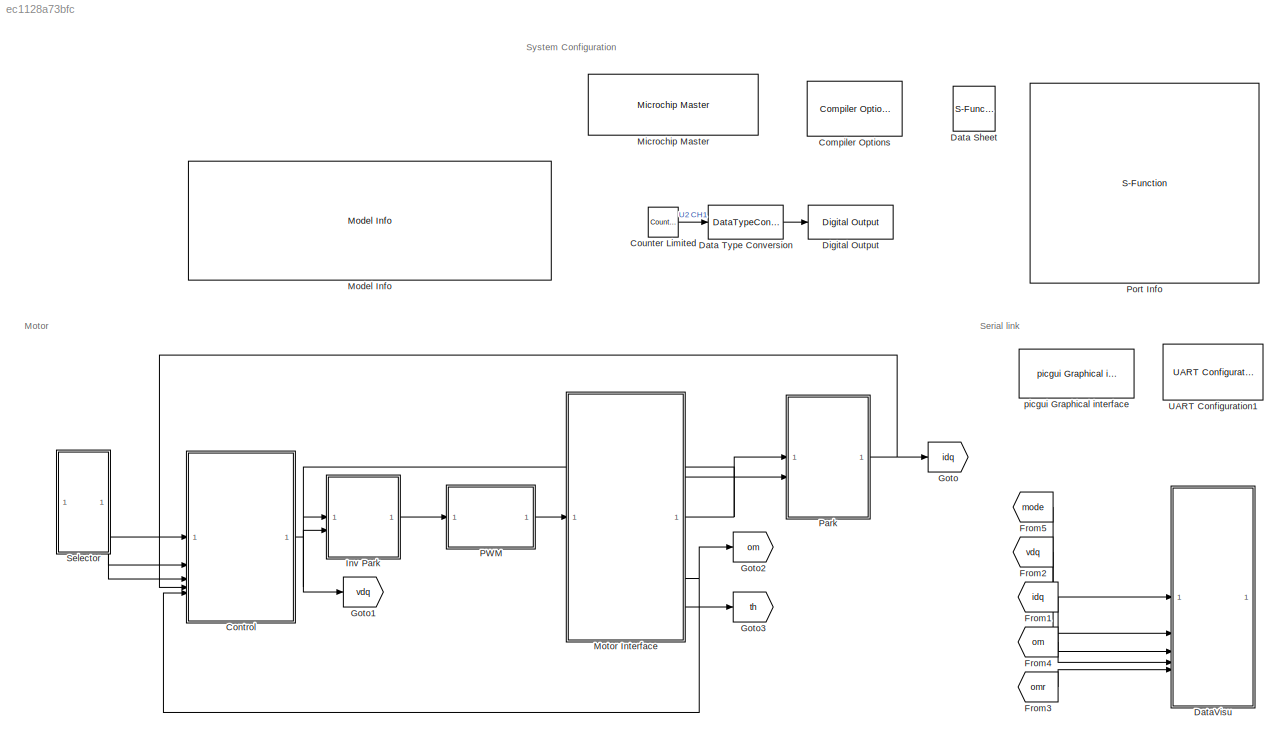
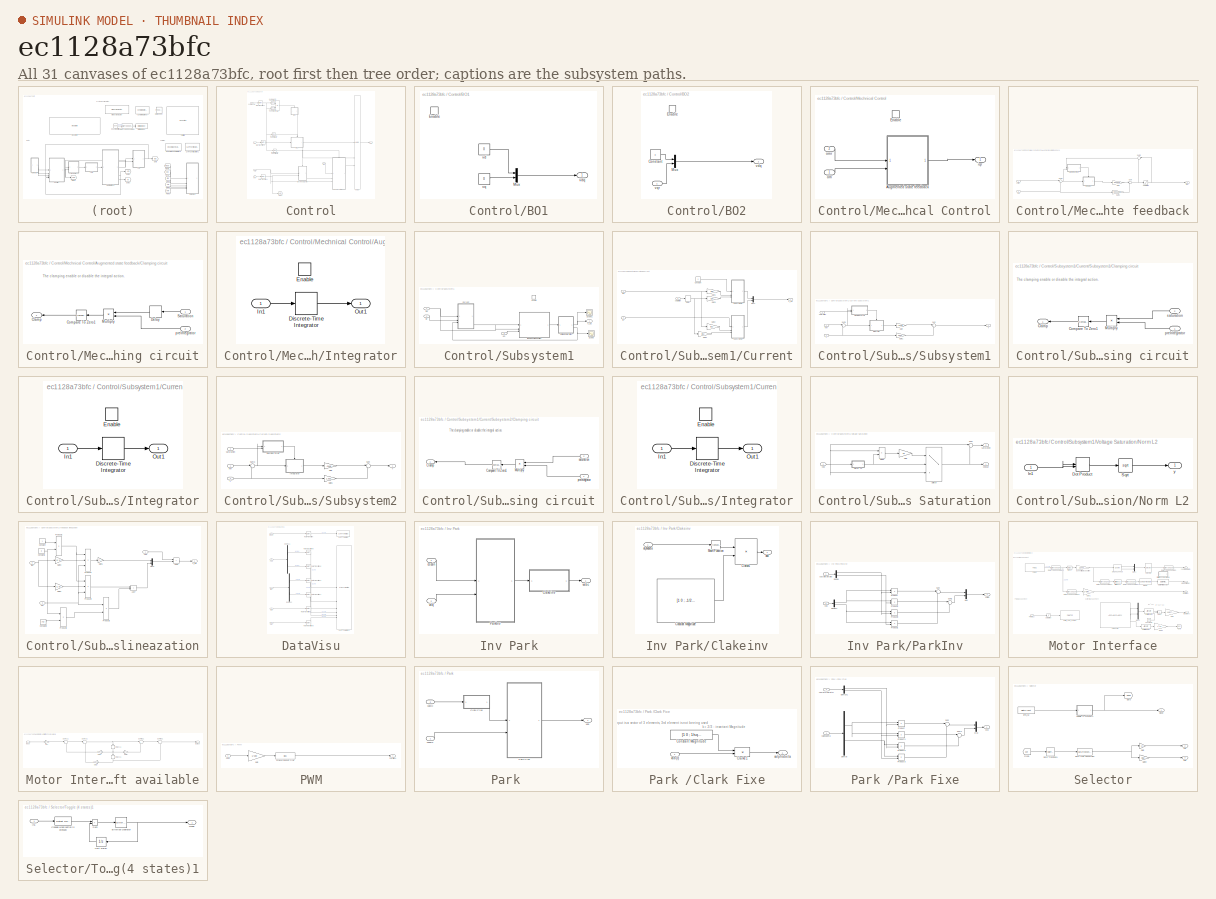
[diagram: thumbnail index - all 31 canvases of the model, root first then tree order]
MODEL slx_ec1128a73bfc
KIND model
CONFIG AbsTol = auto
CONFIG EnableMultiTasking = on
CONFIG FixedStep = 5e-5
CONFIG InitFcn = % DC Voltage\nVDC = 24;\n\n% Intersective PMW \nVmax = VDC/2;\nImax = 4;\n\nTs = 1e-4;\n\n\n% pole paires\np = 4;\n\n% QEI\nlines = 4*1000;\neleclines = lines/p;\ninveleclines = 1/eleclines\ngainQEIspeed = 2*pi/Ts/lines\n\n% Electrical parameters\nR=0.656; L=0.35e-3; Phif=0.0066;\n% Mechanical parameters\nF=1.e-05; J=1e-05; C0 = 0.01;%10;%1;\n\n\n\n\n\n\n\n
CONFIG MaxStep = auto
CONFIG MinStep = auto
CONFIG RelTol = 1e-3
CONFIG SampleTimeConstraint = Unconstrained
CONFIG SolverName = FixedStepDiscrete
CONFIG StartTime = 0.0
CONFIG StopTime = 10.0
BLOCK [Reference] Compiler Options  REF=MCHP_Blockset/System Configuration/Compiler Options
  Priority = 1
  SourceBlock = MCHP_Blockset/System Configuration/Compiler Options
  SourceProductName = MPLAB Device Blocks for Simulink
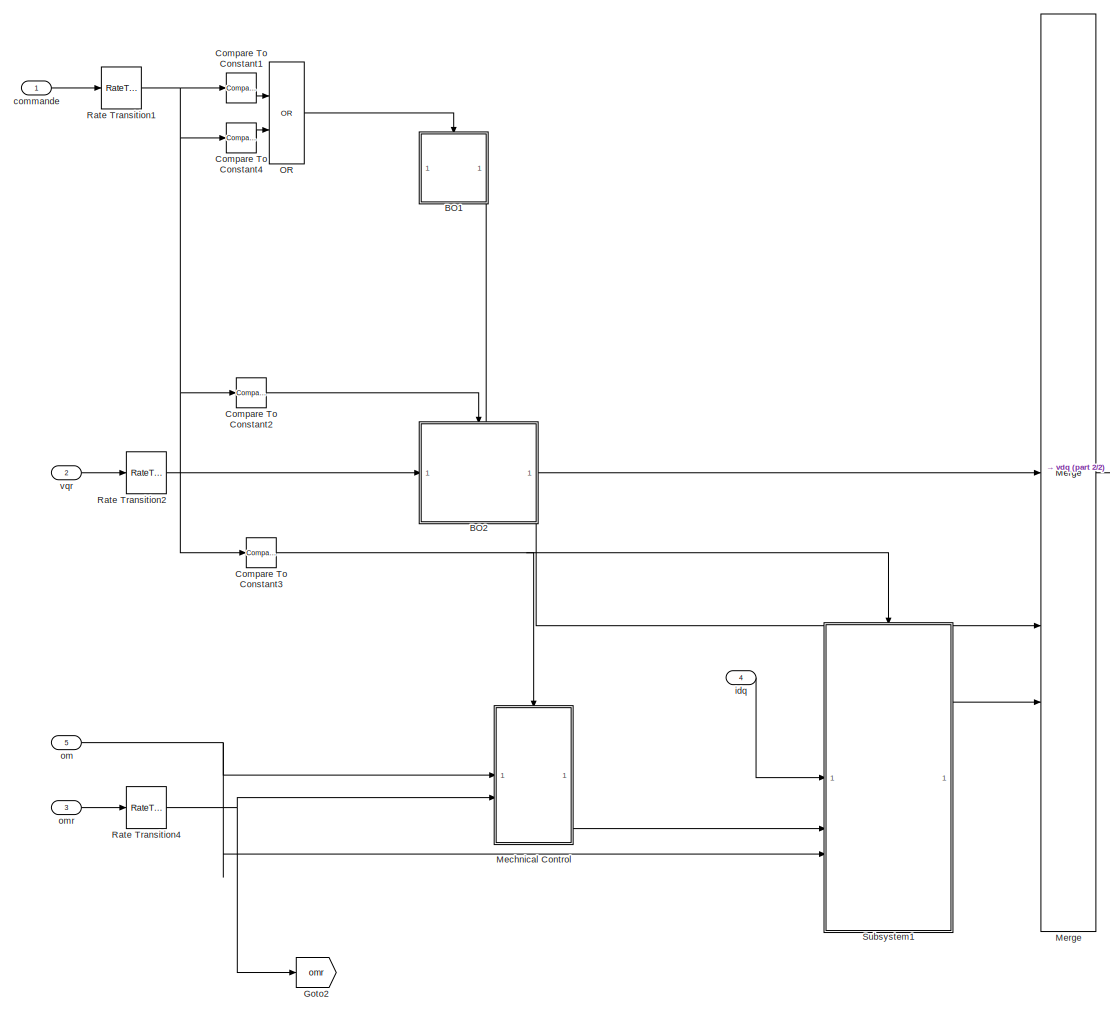
[diagram: Control - part 1/2, most of the canvas]
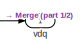
[diagram: Control - part 2/2, middle right region]
BLOCK [SubSystem] Control
BLOCK [SubSystem] Control/BO1
BLOCK [EnablePort] Control/BO1/Enable
BLOCK [Mux] Control/BO1/Mux
  DisplayOption = bar
  Inputs = 2
BLOCK [Constant] Control/BO1/vd
  OutDataTypeStr = single
  OutMax = [12]
  OutMin = [-12]
  Value = 0
BLOCK [Outport] Control/BO1/vdq
  VectorParamsAs1DForOutWhenUnconnected = off
BLOCK [Constant] Control/BO1/vq
  OutDataTypeStr = single
  OutMax = [12]
  OutMin = [-12]
  Value = 0
BLOCK [SubSystem] Control/BO2
BLOCK [Constant] Control/BO2/Constant
  OutDataTypeStr = single
  Value = 0
BLOCK [EnablePort] Control/BO2/Enable
BLOCK [Mux] Control/BO2/Mux
  DisplayOption = bar
  Inputs = 2
BLOCK [Outport] Control/BO2/vdq
  VectorParamsAs1DForOutWhenUnconnected = off
BLOCK [Inport] Control/BO2/vqr
BLOCK [Reference] Control/Compare To Constant1  REF=simulink/Logic and Bit
Operations/Compare
To Constant
  SourceBlock = simulink/Logic and Bit\nOperations/Compare\nTo Constant
  SourceType = Compare To Constant
BLOCK [Reference] Control/Compare To Constant2  REF=simulink/Logic and Bit
Operations/Compare
To Constant
  SourceBlock = simulink/Logic and Bit\nOperations/Compare\nTo Constant
  SourceType = Compare To Constant
BLOCK [Reference] Control/Compare To Constant3  REF=simulink/Logic and Bit
Operations/Compare
To Constant
  SourceBlock = simulink/Logic and Bit\nOperations/Compare\nTo Constant
  SourceType = Compare To Constant
BLOCK [Reference] Control/Compare To Constant4  REF=simulink/Logic and Bit
Operations/Compare
To Constant
  SourceBlock = simulink/Logic and Bit\nOperations/Compare\nTo Constant
  SourceType = Compare To Constant
BLOCK [Goto] Control/Goto2
  GotoTag = omr
  TagVisibility = global
BLOCK [SubSystem] Control/Mechnical Control
BLOCK [SubSystem] Control/Mechnical Control/Augmented state feedback
  NameLocation = top
BLOCK [SubSystem] Control/Mechnical Control/Augmented state feedback/Clamping circuit
BLOCK [Outport] Control/Mechnical Control/Augmented state feedback/Clamping circuit/Clamp
  DisableCoverage = on
  VectorParamsAs1DForOutWhenUnconnected = off
BLOCK [Reference] Control/Mechnical Control/Augmented state feedback/Clamping circuit/Compare To Zero1  REF=simulink/Logic and Bit
Operations/Compare
To Zero
  NameLocation = top
  SourceBlock = simulink/Logic and Bit\nOperations/Compare\nTo Zero
  SourceType = Compare To Zero
BLOCK [Delay] Control/Mechnical Control/Augmented state feedback/Clamping circuit/Delay
  DelayLength = 1
  InitialCondition = 0
  InputPortMap = u0
  NameLocation = top
BLOCK [Product] Control/Mechnical Control/Augmented state feedback/Clamping circuit/Multiply
  NameLocation = top
BLOCK [Inport] Control/Mechnical Control/Augmented state feedback/Clamping circuit/Saturation
  DisableCoverage = on
BLOCK [Inport] Control/Mechnical Control/Augmented state feedback/Clamping circuit/preIntegrator
  DisableCoverage = on
  Port = 2
  VarSizeSig = No
BLOCK [Gain] Control/Mechnical Control/Augmented state feedback/Gain
  Gain = -0.02525
BLOCK [Gain] Control/Mechnical Control/Augmented state feedback/Gain1
  Gain = 0.003283
BLOCK [SubSystem] Control/Mechnical Control/Augmented state feedback/Integrator
BLOCK [DiscreteIntegrator] Control/Mechnical Control/Augmented state feedback/Integrator/Discrete-Time Integrator
  ICPrevOutput = DiscIntNeverNeededParam
  ICPrevScaledInput = DiscIntNeverNeededParam
  InitialConditionSetting = Auto
  OutDataTypeStr = single
  SampleTime = 1e-4
  SaturateOnIntegerOverflow = on
BLOCK [EnablePort] Control/Mechnical Control/Augmented state feedback/Integrator/Enable
BLOCK [Inport] Control/Mechnical Control/Augmented state feedback/Integrator/In1
BLOCK [Outport] Control/Mechnical Control/Augmented state feedback/Integrator/Out1
  VectorParamsAs1DForOutWhenUnconnected = off
BLOCK [Saturate] Control/Mechnical Control/Augmented state feedback/Saturation
  LowerLimit = -4
  UpperLimit = 4
BLOCK [Sum] Control/Mechnical Control/Augmented state feedback/Sum
  Inputs = |--
  OutDataTypeStr = single
  SaturateOnIntegerOverflow = on
BLOCK [Sum] Control/Mechnical Control/Augmented state feedback/Sum1
  Inputs = |+-
BLOCK [Sum] Control/Mechnical Control/Augmented state feedback/Sum2
  AccumDataTypeStr = Inherit: Same as first input
  Inputs = |-+
  NameLocation = top
  OutDataTypeStr = Inherit: Same as accumulator
  SaturateOnIntegerOverflow = on
BLOCK [Outport] Control/Mechnical Control/Augmented state feedback/iqref
  VectorParamsAs1DForOutWhenUnconnected = off
BLOCK [Inport] Control/Mechnical Control/Augmented state feedback/om
  Port = 2
BLOCK [Inport] Control/Mechnical Control/Augmented state feedback/omref
BLOCK [EnablePort] Control/Mechnical Control/Enable
  StatesWhenEnabling = reset
BLOCK [Outport] Control/Mechnical Control/iqr
  VectorParamsAs1DForOutWhenUnconnected = off
BLOCK [Inport] Control/Mechnical Control/om
BLOCK [Inport] Control/Mechnical Control/omr
  Port = 2
BLOCK [Merge] Control/Merge
  Inputs = 3
BLOCK [Logic] Control/OR
  AllPortsSameDT = off
  IconShape = distinctive
  Operator = OR
  OutDataTypeStr = boolean
BLOCK [RateTransition] Control/Rate Transition1
BLOCK [RateTransition] Control/Rate Transition2
BLOCK [RateTransition] Control/Rate Transition4
BLOCK [SubSystem] Control/Subsystem1
BLOCK [SubSystem] Control/Subsystem1/Current
  NameLocation = top
BLOCK [Constant] Control/Subsystem1/Current/Constant
  Value = 0
BLOCK [Delay] Control/Subsystem1/Current/Delay
  DelayLength = 1
  InputPortMap = u0
BLOCK [Gain] Control/Subsystem1/Current/Gain1
  Gain = [1 0]
  Multiplication = Matrix(K*u)
  OutDataTypeStr = Inherit: Same as input
BLOCK [Gain] Control/Subsystem1/Current/Gain2
  Gain = [0 1]
  Multiplication = Matrix(K*u)
  OutDataTypeStr = Inherit: Same as input
BLOCK [Gain] Control/Subsystem1/Current/Gain3
  Gain = [1 0]
  Multiplication = Matrix(K*u)
  OutDataTypeStr = Inherit: Same as input
BLOCK [Gain] Control/Subsystem1/Current/Gain4
  Gain = [0 1]
  Multiplication = Matrix(K*u)
  OutDataTypeStr = Inherit: Same as input
BLOCK [Mux] Control/Subsystem1/Current/Mux1
  DisplayOption = bar
  Inputs = 2
BLOCK [SubSystem] Control/Subsystem1/Current/Subsystem1
BLOCK [SubSystem] Control/Subsystem1/Current/Subsystem1/Clamping circuit
BLOCK [Outport] Control/Subsystem1/Current/Subsystem1/Clamping circuit/Clamp
  DisableCoverage = on
  VectorParamsAs1DForOutWhenUnconnected = off
BLOCK [Reference] Control/Subsystem1/Current/Subsystem1/Clamping circuit/Compare To Zero1  REF=simulink/Logic and Bit
Operations/Compare
To Zero
  NameLocation = top
  SourceBlock = simulink/Logic and Bit\nOperations/Compare\nTo Zero
  SourceType = Compare To Zero
BLOCK [Product] Control/Subsystem1/Current/Subsystem1/Clamping circuit/Multiply
  NameLocation = top
BLOCK [Inport] Control/Subsystem1/Current/Subsystem1/Clamping circuit/preIntegrator
  DisableCoverage = on
  VarSizeSig = No
BLOCK [Inport] Control/Subsystem1/Current/Subsystem1/Clamping circuit/saturation
  DisableCoverage = on
  Port = 2
BLOCK [Gain] Control/Subsystem1/Current/Subsystem1/Gain
  Gain = -3418
BLOCK [Gain] Control/Subsystem1/Current/Subsystem1/Gain1
  Gain = 1.531
BLOCK [SubSystem] Control/Subsystem1/Current/Subsystem1/Integrator
BLOCK [DiscreteIntegrator] Control/Subsystem1/Current/Subsystem1/Integrator/Discrete-Time Integrator
  ICPrevOutput = DiscIntNeverNeededParam
  ICPrevScaledInput = DiscIntNeverNeededParam
  InitialConditionSetting = Auto
  OutDataTypeStr = single
  SampleTime = 1e-4
BLOCK [EnablePort] Control/Subsystem1/Current/Subsystem1/Integrator/Enable
BLOCK [Inport] Control/Subsystem1/Current/Subsystem1/Integrator/In1
BLOCK [Outport] Control/Subsystem1/Current/Subsystem1/Integrator/Out1
  VectorParamsAs1DForOutWhenUnconnected = off
BLOCK [Sum] Control/Subsystem1/Current/Subsystem1/Sum
  Inputs = |--
  OutDataTypeStr = single
  SaturateOnIntegerOverflow = on
BLOCK [Sum] Control/Subsystem1/Current/Subsystem1/Sum3
  Inputs = |+-
BLOCK [Inport] Control/Subsystem1/Current/Subsystem1/i
  Port = 2
BLOCK [Inport] Control/Subsystem1/Current/Subsystem1/iref
BLOCK [Inport] Control/Subsystem1/Current/Subsystem1/saturation
  Port = 3
BLOCK [Outport] Control/Subsystem1/Current/Subsystem1/v
  VectorParamsAs1DForOutWhenUnconnected = off
BLOCK [SubSystem] Control/Subsystem1/Current/Subsystem2
BLOCK [SubSystem] Control/Subsystem1/Current/Subsystem2/Clamping circuit
BLOCK [Outport] Control/Subsystem1/Current/Subsystem2/Clamping circuit/Clamp
  DisableCoverage = on
  VectorParamsAs1DForOutWhenUnconnected = off
BLOCK [Reference] Control/Subsystem1/Current/Subsystem2/Clamping circuit/Compare To Zero1  REF=simulink/Logic and Bit
Operations/Compare
To Zero
  NameLocation = top
  SourceBlock = simulink/Logic and Bit\nOperations/Compare\nTo Zero
  SourceType = Compare To Zero
BLOCK [Product] Control/Subsystem1/Current/Subsystem2/Clamping circuit/Multiply
  NameLocation = top
BLOCK [Inport] Control/Subsystem1/Current/Subsystem2/Clamping circuit/preIntegrator
  DisableCoverage = on
  VarSizeSig = No
BLOCK [Inport] Control/Subsystem1/Current/Subsystem2/Clamping circuit/saturation
  DisableCoverage = on
  Port = 2
BLOCK [Gain] Control/Subsystem1/Current/Subsystem2/Gain
  Gain = -3418
BLOCK [Gain] Control/Subsystem1/Current/Subsystem2/Gain1
  Gain = 1.531
BLOCK [SubSystem] Control/Subsystem1/Current/Subsystem2/Integrator
BLOCK [DiscreteIntegrator] Control/Subsystem1/Current/Subsystem2/Integrator/Discrete-Time Integrator
  ICPrevOutput = DiscIntNeverNeededParam
  ICPrevScaledInput = DiscIntNeverNeededParam
  InitialConditionSetting = Auto
  OutDataTypeStr = single
  SampleTime = 1e-4
BLOCK [EnablePort] Control/Subsystem1/Current/Subsystem2/Integrator/Enable
BLOCK [Inport] Control/Subsystem1/Current/Subsystem2/Integrator/In1
BLOCK [Outport] Control/Subsystem1/Current/Subsystem2/Integrator/Out1
  VectorParamsAs1DForOutWhenUnconnected = off
BLOCK [Sum] Control/Subsystem1/Current/Subsystem2/Sum
  Inputs = |--
  OutDataTypeStr = single
  SaturateOnIntegerOverflow = on
BLOCK [Sum] Control/Subsystem1/Current/Subsystem2/Sum3
  Inputs = |+-
BLOCK [Inport] Control/Subsystem1/Current/Subsystem2/i
  Port = 2
BLOCK [Inport] Control/Subsystem1/Current/Subsystem2/iref
BLOCK [Inport] Control/Subsystem1/Current/Subsystem2/saturation
  Port = 3
BLOCK [Outport] Control/Subsystem1/Current/Subsystem2/v
  VectorParamsAs1DForOutWhenUnconnected = off
BLOCK [Inport] Control/Subsystem1/Current/idq
BLOCK [Inport] Control/Subsystem1/Current/iqr
  Port = 2
BLOCK [Inport] Control/Subsystem1/Current/saturation
  Port = 3
BLOCK [Outport] Control/Subsystem1/Current/v_dq
  VectorParamsAs1DForOutWhenUnconnected = off
BLOCK [EnablePort] Control/Subsystem1/Enable
  StatesWhenEnabling = reset
BLOCK [Scope] Control/Subsystem1/Scope
  Floating = off
  NumInputPorts = 1
  ScopeSpecificationString = Simulink.scopes.TimeScopeBlockCfg('CurrentConfiguration', extmgr.ConfigurationSet(extmgr.Configuration('Core','General UI',true),extmgr.Configuration('Core','Source UI',true),extmgr.Configuration('Sources','WiredSimulink',true,'DataLoggingVariableName','ScopeData3'),extmgr.Configuration('Visuals','Time Domain',true,'SerializedDisplays',{struct('MinYLimReal','-0.02877','MaxYLimReal','0.25896','YLab...<+1435ch>
BLOCK [Scope] Control/Subsystem1/Scope1
  Floating = off
  NumInputPorts = 1
  ScopeSpecificationString = Simulink.scopes.TimeScopeBlockCfg('CurrentConfiguration', extmgr.ConfigurationSet(extmgr.Configuration('Core','General UI',true),extmgr.Configuration('Core','Source UI',true),extmgr.Configuration('Sources','WiredSimulink',true,'DataLoggingVariableName','ScopeData4'),extmgr.Configuration('Visuals','Time Domain',true,'SerializedDisplays',{struct('MinYLimReal','-1.09402','MaxYLimReal','6.46965','YLab...<+1461ch>
BLOCK [SubSystem] Control/Subsystem1/Voltage Saturation
BLOCK [Product] Control/Subsystem1/Voltage Saturation/Divide
  Inputs = */
BLOCK [Gain] Control/Subsystem1/Voltage Saturation/Gain
  Gain = 12
BLOCK [SubSystem] Control/Subsystem1/Voltage Saturation/Norm L2
BLOCK [DotProduct] Control/Subsystem1/Voltage Saturation/Norm L2/Dot Product
  OutDataTypeStr = Inherit: Inherit via internal rule
BLOCK [Inport] Control/Subsystem1/Voltage Saturation/Norm L2/In1
BLOCK [Sqrt] Control/Subsystem1/Voltage Saturation/Norm L2/Sqrt
BLOCK [Outport] Control/Subsystem1/Voltage Saturation/Norm L2/y
BLOCK [Sum] Control/Subsystem1/Voltage Saturation/Sum
  Inputs = |+-
BLOCK [Switch] Control/Subsystem1/Voltage Saturation/Switch
  Criteria = u2 > Threshold
  InputSameDT = off
  SaturateOnIntegerOverflow = off
  Threshold = 12
BLOCK [Outport] Control/Subsystem1/Voltage Saturation/saturation
  Port = 2
  VectorParamsAs1DForOutWhenUnconnected = off
BLOCK [Inport] Control/Subsystem1/Voltage Saturation/vdq
BLOCK [Outport] Control/Subsystem1/Voltage Saturation/vdqsat
  VectorParamsAs1DForOutWhenUnconnected = off
BLOCK [SubSystem] Control/Subsystem1/feedback lineazation
  NameLocation = top
BLOCK [Sum] Control/Subsystem1/feedback lineazation/Add6
  IconShape = rectangular
BLOCK [Sum] Control/Subsystem1/feedback lineazation/Add7
  IconShape = rectangular
BLOCK [Constant] Control/Subsystem1/feedback lineazation/Constant
  OutDataTypeStr = single
  Value = L
BLOCK [Constant] Control/Subsystem1/feedback lineazation/Constant1
  OutDataTypeStr = single
  Value = p
BLOCK [Constant] Control/Subsystem1/feedback lineazation/Constant2
  OutDataTypeStr = single
  Value = Phif
BLOCK [Gain] Control/Subsystem1/feedback lineazation/Gain1
  Gain = -1
BLOCK [Gain] Control/Subsystem1/feedback lineazation/Gain2
  Gain = [1 0]
  Multiplication = Matrix(K*u)
BLOCK [Gain] Control/Subsystem1/feedback lineazation/Gain3
  Gain = [0 1]
  Multiplication = Matrix(K*u)
BLOCK [Mux] Control/Subsystem1/feedback lineazation/Mux2
  DisplayOption = bar
  Inputs = 2
BLOCK [Product] Control/Subsystem1/feedback lineazation/Product2
BLOCK [Product] Control/Subsystem1/feedback lineazation/Product3
BLOCK [Product] Control/Subsystem1/feedback lineazation/Product7
  Inputs = 3
BLOCK [Product] Control/Subsystem1/feedback lineazation/Product8
BLOCK [Product] Control/Subsystem1/feedback lineazation/Product9
  Inputs = 3
BLOCK [Inport] Control/Subsystem1/feedback lineazation/idq
  NameLocation = top
  Port = 2
BLOCK [Inport] Control/Subsystem1/feedback lineazation/om
  Port = 3
BLOCK [Inport] Control/Subsystem1/feedback lineazation/udq
BLOCK [Outport] Control/Subsystem1/feedback lineazation/v_dq
  VectorParamsAs1DForOutWhenUnconnected = off
BLOCK [Inport] Control/Subsystem1/idq
BLOCK [Inport] Control/Subsystem1/iqr
  Port = 2
BLOCK [Inport] Control/Subsystem1/om
  Port = 3
BLOCK [Outport] Control/Subsystem1/v_dq
BLOCK [Inport] Control/commande
BLOCK [Inport] Control/idq
  Port = 4
BLOCK [Inport] Control/om
  Port = 5
BLOCK [Inport] Control/omr
  Port = 3
BLOCK [Outport] Control/vdq
  VectorParamsAs1DForOutWhenUnconnected = off
BLOCK [Inport] Control/vqr
  Port = 2
BLOCK [Reference] Counter Limited  REF=simulink/Sources/Counter
Limited
  SourceBlock = simulink/Sources/Counter\nLimited
  SourceType = Counter Limited
BLOCK [S-Function] Data Sheet
  AttributesFormatString = %<cpy_MCHP_Id>
  CopyFcn = MCHP_Doc_Callback(gcb,'COPY');
  EnableBusSupport = off
  FunctionName = MCHP_EmptySFunction
  OpenFcn = MCHP_Doc_Callback(gcb,'OPEN');
  SFcnIsStateOwnerBlock = off
  SFunctionDeploymentMode = off
BLOCK [DataTypeConversion] Data Type Conversion
  OutDataTypeStr = boolean
  RndMeth = Floor
  SaturateOnIntegerOverflow = off
BLOCK [SubSystem] DataVisu
BLOCK [Demux] DataVisu/Demux1
  Outputs = 2
BLOCK [Demux] DataVisu/Demux2
  Outputs = 2
BLOCK [RateTransition] DataVisu/Rate Transition
BLOCK [RateTransition] DataVisu/Rate Transition1
BLOCK [RateTransition] DataVisu/Rate Transition4
BLOCK [RateTransition] DataVisu/Rate Transition5
BLOCK [RateTransition] DataVisu/Rate Transition6
BLOCK [RateTransition] DataVisu/Rate Transition7
BLOCK [RateTransition] DataVisu/Rate Transition8
BLOCK [Reference] DataVisu/UART Tx-Matlab  REF=MCHP_Blockset/BUS UART/UART Tx-Matlab
  SourceBlock = MCHP_Blockset/BUS UART/UART Tx-Matlab
  SourceProductName = MPLAB Device Blocks for Simulink
  SourceType = Higl Level UART protocol
BLOCK [Reference] DataVisu/UART Tx-Matlab1  REF=MCHP_Blockset/BUS UART/UART Tx-Matlab
  SourceBlock = MCHP_Blockset/BUS UART/UART Tx-Matlab
  SourceProductName = MPLAB Device Blocks for Simulink
  SourceType = Higl Level UART protocol
BLOCK [Inport] DataVisu/idq
  Port = 3
BLOCK [Inport] DataVisu/mode
BLOCK [Inport] DataVisu/om
  Port = 4
BLOCK [Inport] DataVisu/omr
  Port = 5
BLOCK [Inport] DataVisu/vdq
  Port = 2
BLOCK [Reference] Digital Output  REF=MCHP_Blockset/Digital IO/Digital Output
  SourceBlock = MCHP_Blockset/Digital IO/Digital Output
  SourceProductName = MPLAB Device Blocks for Simulink
BLOCK [From] From1
  GotoTag = idq
BLOCK [From] From2
  GotoTag = vdq
BLOCK [From] From3
  GotoTag = omr
  TagVisibility = global
BLOCK [From] From4
  GotoTag = om
BLOCK [From] From5
  GotoTag = mode
  TagVisibility = global
BLOCK [Goto] Goto
  GotoTag = idq
BLOCK [Goto] Goto1
  GotoTag = vdq
BLOCK [Goto] Goto2
  GotoTag = om
BLOCK [Goto] Goto3
  GotoTag = th
BLOCK [SubSystem] Inv Park
BLOCK [SubSystem] Inv Park/Clakeinv
BLOCK [Product] Inv Park/Clakeinv/Clarke1
  Multiplication = Matrix(*)
  OutDataTypeStr = Inherit: Same as first input
  RndMeth = Simplest
BLOCK [Constant] Inv Park/Clakeinv/Constant Magnitude
  OutDataTypeStr = Inherit: Inherit via back propagation
  SampleTime = -1
  Value = [1 0 ; -1/2 sqrt(3)/2 ;-1/2 -sqrt(3)/2]'
BLOCK [Math] Inv Park/Clakeinv/Math Function
  Operator = transpose
  SignedPower = on
BLOCK [Outport] Inv Park/Clakeinv/abc
  VectorParamsAs1DForOutWhenUnconnected = off
BLOCK [Inport] Inv Park/Clakeinv/alphabeta
BLOCK [SubSystem] Inv Park/ParkInv
BLOCK [Demux] Inv Park/ParkInv/Demux
  Outputs = 2
BLOCK [Demux] Inv Park/ParkInv/Demux1
  Outputs = 2
BLOCK [Mux] Inv Park/ParkInv/Mux
  DisplayOption = bar
  Inputs = 2
BLOCK [Product] Inv Park/ParkInv/Product
BLOCK [Product] Inv Park/ParkInv/Product1
BLOCK [Product] Inv Park/ParkInv/Product2
BLOCK [Product] Inv Park/ParkInv/Product3
BLOCK [Sum] Inv Park/ParkInv/Sum
  Inputs = |+-
BLOCK [Sum] Inv Park/ParkInv/Sum1
  Inputs = |++
BLOCK [Inport] Inv Park/ParkInv/cos(pth)sin(pth)
BLOCK [Outport] Inv Park/ParkInv/valbe
  VectorParamsAs1DForOutWhenUnconnected = off
BLOCK [Inport] Inv Park/ParkInv/vdq
  Port = 2
BLOCK [Inport] Inv Park/cossin
BLOCK [Outport] Inv Park/vabc
  VectorParamsAs1DForOutWhenUnconnected = off
BLOCK [Inport] Inv Park/vdq
  Port = 2
  PortDimensions = 2
BLOCK [Reference] Microchip Master  REF=MCHP_Blockset/System Configuration/Microchip Master
  Priority = 1
  SourceBlock = MCHP_Blockset/System Configuration/Microchip Master
  SourceProductName = MPLAB Device Blocks for Simulink
BLOCK [Reference] Model Info  REF=simulink/Model-Wide
Utilities/Model Info
  SourceBlock = simulink/Model-Wide\nUtilities/Model Info
  SourceType = CMBlock
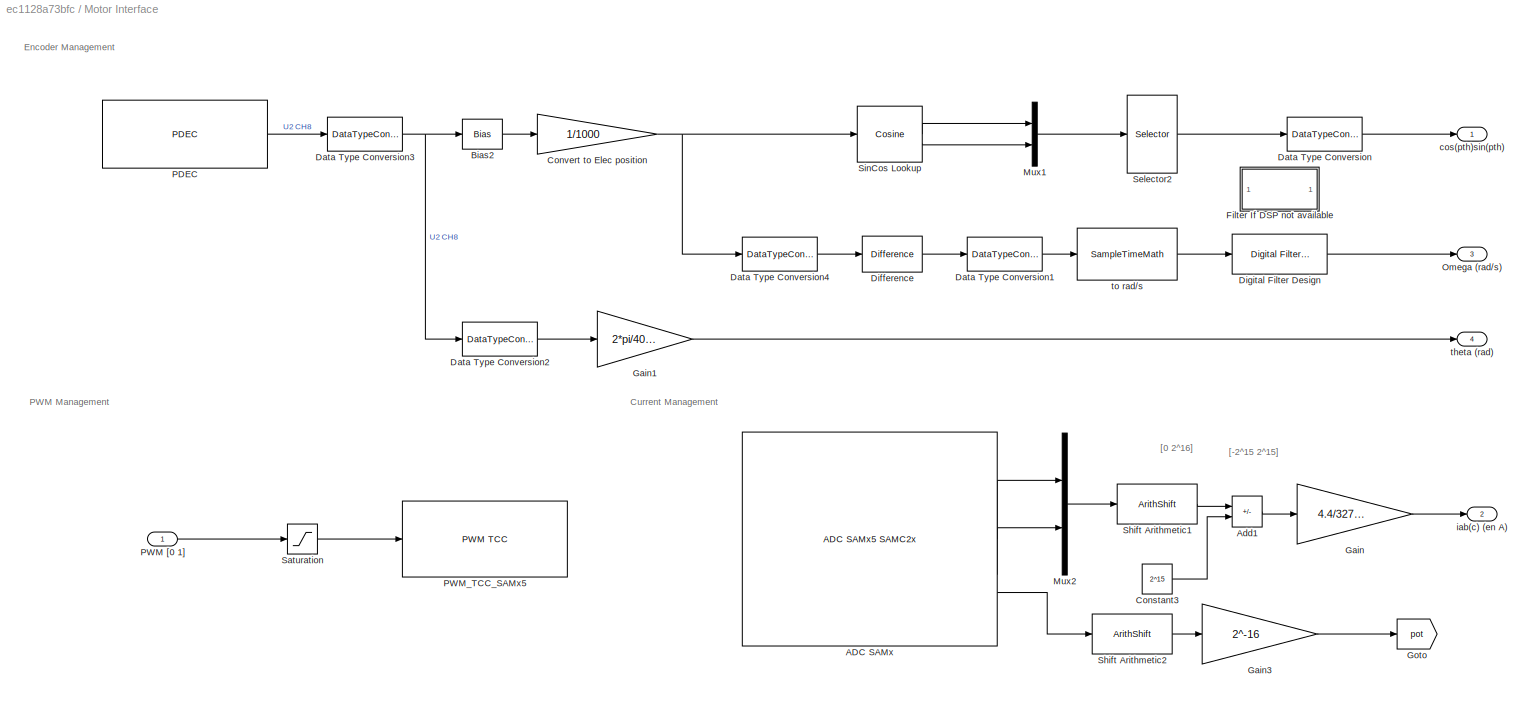
BLOCK [SubSystem] Motor Interface
BLOCK [Reference] Motor Interface/ADC SAMx  REF=MCHP_Blockset/Analog IO/ADC SAMx5 SAMC2x
  SourceBlock = MCHP_Blockset/Analog IO/ADC SAMx5 SAMC2x
  SourceProductName = MPLAB Device Blocks for Simulink
  SourceType = ADC for SAMD5/E5 & SAMC2x
  UserDataPersistent = on
BLOCK [Sum] Motor Interface/Add1
  IconShape = rectangular
  Inputs = +-
  OutDataTypeStr = single
BLOCK [Bias] Motor Interface/Bias2
  Bias = 170
  SaturateOnIntegerOverflow = off
BLOCK [Constant] Motor Interface/Constant3
  OutDataTypeStr = fixdt(0,16,0)
  Value = 2^15
BLOCK [Gain] Motor Interface/Convert to Elec position
  Gain = 1/1000
  OutDataTypeStr = fixdt(0,16,16)
BLOCK [DataTypeConversion] Motor Interface/Data Type Conversion
  OutDataTypeStr = single
  RndMeth = Floor
  SaturateOnIntegerOverflow = off
BLOCK [DataTypeConversion] Motor Interface/Data Type Conversion1
  OutDataTypeStr = single
  RndMeth = Floor
  SaturateOnIntegerOverflow = off
BLOCK [DataTypeConversion] Motor Interface/Data Type Conversion2
  OutDataTypeStr = single
  RndMeth = Floor
  SaturateOnIntegerOverflow = off
BLOCK [DataTypeConversion] Motor Interface/Data Type Conversion3
  ConvertRealWorld = Stored Integer (SI)
  OutDataTypeStr = int16
  RndMeth = Floor
  SaturateOnIntegerOverflow = off
BLOCK [DataTypeConversion] Motor Interface/Data Type Conversion4
  ConvertRealWorld = Stored Integer (SI)
  OutDataTypeStr = fixdt(1,16,16)
  RndMeth = Floor
  SaturateOnIntegerOverflow = off
BLOCK [Reference] Motor Interface/Difference  REF=simulink/Discrete/Difference
  SourceBlock = simulink/Discrete/Difference
  SourceType = Difference
BLOCK [Reference] Motor Interface/Digital Filter Design  REF=dspfdesign/Digital
Filter Design
  SourceBlock = dspfdesign/Digital\nFilter Design
  SourceType = Digital Filter Design
  UserDataPersistent = on
BLOCK [SubSystem] Motor Interface/Filter If DSP not available
  Commented = on
  ErrorFcn = dspFilterRealizedInBasicElemsAlgLoopErrFcnCallback
  Tag = FilterWizardSubSystem
  UserDataPersistent = on
BLOCK [Delay] Motor Interface/Filter If DSP not available/Delay11
  DelayLength = 1
  InitialCondition = 0
  InputPortMap = u0
  NameLocation = right
BLOCK [Delay] Motor Interface/Filter If DSP not available/Delay21
  DelayLength = 1
  InitialCondition = 0
  InputPortMap = u0
  NameLocation = right
BLOCK [Inport] Motor Interface/Filter If DSP not available/Input
BLOCK [Outport] Motor Interface/Filter If DSP not available/Output
BLOCK [Sum] Motor Interface/Filter If DSP not available/SumA21
  Inputs = |+-
  OutDataTypeStr = Inherit: Same as first input
  RndMeth = Nearest
  SaturateOnIntegerOverflow = on
BLOCK [Sum] Motor Interface/Filter If DSP not available/SumA31
  Inputs = |+-
  OutDataTypeStr = Inherit: Same as first input
  RndMeth = Nearest
  SaturateOnIntegerOverflow = on
BLOCK [Sum] Motor Interface/Filter If DSP not available/SumB21
  Inputs = |++
  OutDataTypeStr = Inherit: Same as first input
  RndMeth = Nearest
  SaturateOnIntegerOverflow = on
BLOCK [Sum] Motor Interface/Filter If DSP not available/SumB31
  Inputs = |++
  OutDataTypeStr = Inherit: Same as first input
  RndMeth = Nearest
  SaturateOnIntegerOverflow = on
BLOCK [Gain] Motor Interface/Filter If DSP not available/a(2)(1)
  Gain = -1.14298050253990113
  OutDataTypeStr = Inherit: Same as input
  ParamDataTypeStr = double
  RndMeth = Nearest
  SaturateOnIntegerOverflow = on
BLOCK [Gain] Motor Interface/Filter If DSP not available/a(3)(1)
  Gain = 0.412801598096188771
  OutDataTypeStr = Inherit: Same as input
  ParamDataTypeStr = double
  RndMeth = Nearest
  SaturateOnIntegerOverflow = on
BLOCK [Gain] Motor Interface/Filter If DSP not available/b(2)(1)
  Gain = 2
  OutDataTypeStr = Inherit: Same as input
  ParamDataTypeStr = double
  RndMeth = Nearest
  SaturateOnIntegerOverflow = on
BLOCK [Gain] Motor Interface/Filter If DSP not available/s(1)
  Gain = 0.0674552738890718956
  OutDataTypeStr = Inherit: Same as input
  ParamDataTypeStr = double
  RndMeth = Nearest
  SaturateOnIntegerOverflow = on
BLOCK [Gain] Motor Interface/Gain
  Gain = 4.4/32768
BLOCK [Gain] Motor Interface/Gain1
  Gain = 2*pi/4000
BLOCK [Gain] Motor Interface/Gain3
  Gain = 2^-16
  OutDataTypeStr = single
BLOCK [Goto] Motor Interface/Goto
  GotoTag = pot
  TagVisibility = global
BLOCK [Mux] Motor Interface/Mux1
  DisplayOption = bar
  Inputs = 2
BLOCK [Mux] Motor Interface/Mux2
  DisplayOption = bar
  Inputs = 2
BLOCK [Outport] Motor Interface/Omega (rad//s)
  Port = 3
  PortDimensions = 1
  VectorParamsAs1DForOutWhenUnconnected = off
BLOCK [Reference] Motor Interface/PDEC  REF=MCHP_Blockset/QEI/PDEC
  SourceBlock = MCHP_Blockset/QEI/PDEC
  SourceProductName = MPLAB Device Blocks for Simulink
  SourceType = PDEC
  UserDataPersistent = on
BLOCK [Inport] Motor Interface/PWM [0 1]
BLOCK [Reference] Motor Interface/PWM_TCC_SAMx5  REF=MCHP_Blockset/PWM IO/PWM TCC
  SourceBlock = MCHP_Blockset/PWM IO/PWM TCC
  SourceProductName = MPLAB Device Blocks for Simulink
  SourceType = PWM - TCC
  UserDataPersistent = on
BLOCK [Saturate] Motor Interface/Saturation
  LinearizeAsGain = off
  LowerLimit = 0.02
  OutDataTypeStr = double
  UpperLimit = 0.98
BLOCK [Selector] Motor Interface/Selector2
  IndexOptions = Index vector (dialog)
  Indices = [2 1]
  InputPortWidth = 2
  OutputSizes = 1
BLOCK [ArithShift] Motor Interface/Shift Arithmetic1
  BitShiftDirection = Left
  BitShiftNumber = 4
  InputPortMap = u0
BLOCK [ArithShift] Motor Interface/Shift Arithmetic2
  BitShiftDirection = Left
  BitShiftNumber = 4
  InputPortMap = u0
BLOCK [Reference] Motor Interface/SinCos Lookup  REF=simulink/Lookup
Tables/Cosine
  SourceBlock = simulink/Lookup\nTables/Cosine
  SourceType = Sine and Cosine
BLOCK [Outport] Motor Interface/cos(pth)sin(pth)
  VectorParamsAs1DForOutWhenUnconnected = off
BLOCK [Outport] Motor Interface/iab(c) (en A)
  Port = 2
  VectorParamsAs1DForOutWhenUnconnected = off
BLOCK [Outport] Motor Interface/theta (rad)
  Port = 4
  VectorParamsAs1DForOutWhenUnconnected = off
BLOCK [SampleTimeMath] Motor Interface/to rad//s
  TsampMathOp = /
  weightValue = (4)/(2*pi)
BLOCK [SubSystem] PWM
BLOCK [Bias] PWM/50% average duty-cycle
  Bias = 0.5
  SaturateOnIntegerOverflow = off
BLOCK [Gain] PWM/Gain
  Gain = 1/VDC
  OutDataTypeStr = single
BLOCK [Outport] PWM/PWM [0 1]
  VectorParamsAs1DForOutWhenUnconnected = off
BLOCK [Inport] PWM/vabc
BLOCK [SubSystem] Park 
BLOCK [SubSystem] Park /Clark Fixe
BLOCK [Product] Park /Clark Fixe/Clarke1
  Multiplication = Matrix(*)
  OutDataTypeStr = single
  RndMeth = Convergent
  SaturateOnIntegerOverflow = on
BLOCK [Constant] Park /Clark Fixe/Constant Magnitude
  OutDataTypeStr = single
  Value = [1 0 ; 1/sqrt(3) 2/sqrt(3) ];
BLOCK [Inport] Park /Clark Fixe/xab(c)
BLOCK [Outport] Park /Clark Fixe/xalphabeta
  VectorParamsAs1DForOutWhenUnconnected = off
BLOCK [SubSystem] Park /Park Fixe
BLOCK [Demux] Park /Park Fixe/Demux
  Outputs = 2
BLOCK [Demux] Park /Park Fixe/Demux1
  Outputs = 2
BLOCK [Mux] Park /Park Fixe/Mux
  DisplayOption = bar
  Inputs = 2
BLOCK [Product] Park /Park Fixe/Product
BLOCK [Product] Park /Park Fixe/Product1
BLOCK [Product] Park /Park Fixe/Product2
BLOCK [Product] Park /Park Fixe/Product3
BLOCK [Sum] Park /Park Fixe/Sum
  Inputs = |++
  SaturateOnIntegerOverflow = on
BLOCK [Sum] Park /Park Fixe/Sum1
  Inputs = |-+
  SaturateOnIntegerOverflow = on
BLOCK [Inport] Park /Park Fixe/cos(pth)sin(pth)
  Port = 2
BLOCK [Inport] Park /Park Fixe/xalphabeta
BLOCK [Outport] Park /Park Fixe/xdq
  VectorParamsAs1DForOutWhenUnconnected = off
BLOCK [Inport] Park /cossin
BLOCK [Inport] Park /xab(c)
  Port = 2
BLOCK [Outport] Park /xdq
  VectorParamsAs1DForOutWhenUnconnected = off
BLOCK [S-Function] Port Info
  CopyFcn = MCHP_PortInfo_Callback(gcb,'COPY');
  EnableBusSupport = off
  FunctionName = MCHP_EmptySFunction
  OpenFcn = MCHP_PortInfo_Callback(gcb,'OPEN');
  SFcnIsStateOwnerBlock = off
  SFunctionDeploymentMode = off
BLOCK [SubSystem] Selector
BLOCK [Reference] Selector/BTN_S2  REF=MCHP_Blockset/Digital IO/Digital Input
  SourceBlock = MCHP_Blockset/Digital IO/Digital Input
  SourceProductName = MPLAB Device Blocks for Simulink
  SourceType = Input driver for Digital Input Pins
BLOCK [DataTypeConversion] Selector/Data Type Conversion
  OutDataTypeStr = single
  RndMeth = Floor
  SaturateOnIntegerOverflow = off
BLOCK [From] Selector/From1
  GotoTag = pot
  TagVisibility = global
BLOCK [Gain] Selector/Gain
  Gain = 12
BLOCK [Gain] Selector/Gain2
  Gain = 350
BLOCK [Goto] Selector/Goto
  GotoTag = mode
  TagVisibility = global
BLOCK [Outport] Selector/Mode
  VectorParamsAs1DForOutWhenUnconnected = off
BLOCK [RateTransition] Selector/Rate Transition1
  OutPortSampleTime = 0.1
BLOCK [SubSystem] Selector/Toggle (4 states)1
BLOCK [Reference] Selector/Toggle (4 states)1/Bitwise Operator  REF=simulink/Logic and Bit
Operations/Bitwise
Operator
  SourceBlock = simulink/Logic and Bit\nOperations/Bitwise\nOperator
  SourceType = Bitwise Operator
BLOCK [Reference] Selector/Toggle (4 states)1/Change when button is pressed  REF=simulink/Logic and Bit
Operations/Detect
Decrease
  SourceBlock = simulink/Logic and Bit\nOperations/Detect\nDecrease
  SourceType = Detect Decrease
BLOCK [Inport] Selector/Toggle (4 states)1/In1
BLOCK [Outport] Selector/Toggle (4 states)1/Mode
  VectorParamsAs1DForOutWhenUnconnected = off
BLOCK [Sum] Selector/Toggle (4 states)1/Sum
  AccumDataTypeStr = uint16
  IconShape = rectangular
  OutDataTypeStr = uint16
BLOCK [UnitDelay] Selector/Toggle (4 states)1/Unit Delay
  HasFrameUpgradeWarning = on
  NameLocation = top
  SampleTime = -1
BLOCK [Outport] Selector/omr
  Port = 3
  VectorParamsAs1DForOutWhenUnconnected = off
BLOCK [Outport] Selector/vqr
  Port = 2
  VectorParamsAs1DForOutWhenUnconnected = off
BLOCK [Reference] UART Configuration1  REF=MCHP_Blockset/BUS UART/UART Configuration
  SourceBlock = MCHP_Blockset/BUS UART/UART Configuration
  SourceProductName = MPLAB Device Blocks for Simulink
  SourceType = Configuration for UART peripheral
BLOCK [Reference] picgui Graphical interface  REF=MCHP_Blockset/BUS UART/picgui
Graphical interface
  SourceBlock = MCHP_Blockset/BUS UART/picgui\nGraphical interface
  SourceProductName = MPLAB Device Blocks for Simulink
ANNOTATION (root): Motor
ANNOTATION (root): Serial link
ANNOTATION (root): System Configuration
ANNOTATION Control/Mechnical Control/Augmented state feedback/Clamping circuit: The clamping enable or disable the integral action.
ANNOTATION Control/Subsystem1/Current/Subsystem1/Clamping circuit: The clamping enable or disable the integral action.
ANNOTATION Control/Subsystem1/Current/Subsystem2/Clamping circuit: The clamping enable or disable the integral action.
ANNOTATION Motor Interface: Current Management
ANNOTATION Motor Interface: Encoder Management
ANNOTATION Motor Interface: PWM Management
ANNOTATION Motor Interface: [-2^15 2^15]
ANNOTATION Motor Interface: [0 2^16]
ANNOTATION Park /Clark Fixe: Input is a vector of 3 elements, 3rd element is not beeing used
ANNOTATION Park /Clark Fixe: k = 2/3 : invariant Magnitude
LINE Control/BO1/Mux:1 -> Control/BO1/vdq:1
LINE Control/BO1/vd:1 -> Control/BO1/Mux:1
LINE Control/BO1/vq:1 -> Control/BO1/Mux:2
LINE Control/BO1:1 -> Control/Merge:1
LINE Control/BO2/Constant:1 -> Control/BO2/Mux:1
LINE Control/BO2/Mux:1 -> Control/BO2/vdq:1
LINE Control/BO2/vqr:1 -> Control/BO2/Mux:2
LINE Control/BO2:1 -> Control/Merge:2
LINE Control/Compare To Constant1:1 -> Control/OR:1
LINE Control/Compare To Constant2:1 -> Control/BO2:enable
NET Control/Compare To Constant3:1 -> Control/Mechnical Control:enable, Control/Subsystem1:enable
LINE Control/Compare To Constant4:1 -> Control/OR:2
LINE Control/Mechnical Control/Augmented state feedback/Clamping circuit/Compare To Zero1:1 -> Control/Mechnical Control/Augmented state feedback/Clamping circuit/Clamp:1
LINE Control/Mechnical Control/Augmented state feedback/Clamping circuit/Delay:1 -> Control/Mechnical Control/Augmented state feedback/Clamping circuit/Multiply:1
LINE Control/Mechnical Control/Augmented state feedback/Clamping circuit/Multiply:1 -> Control/Mechnical Control/Augmented state feedback/Clamping circuit/Compare To Zero1:1
LINE Control/Mechnical Control/Augmented state feedback/Clamping circuit/Saturation:1 -> Control/Mechnical Control/Augmented state feedback/Clamping circuit/Delay:1
LINE Control/Mechnical Control/Augmented state feedback/Clamping circuit/preIntegrator:1 -> Control/Mechnical Control/Augmented state feedback/Clamping circuit/Multiply:2
LINE Control/Mechnical Control/Augmented state feedback/Clamping circuit:1 -> Control/Mechnical Control/Augmented state feedback/Integrator:enable
LINE Control/Mechnical Control/Augmented state feedback/Gain1:1 -> Control/Mechnical Control/Augmented state feedback/Sum:2
LINE Control/Mechnical Control/Augmented state feedback/Gain:1 -> Control/Mechnical Control/Augmented state feedback/Sum:1
LINE Control/Mechnical Control/Augmented state feedback/Integrator/Discrete-Time Integrator:1 -> Control/Mechnical Control/Augmented state feedback/Integrator/Out1:1
LINE Control/Mechnical Control/Augmented state feedback/Integrator/In1:1 -> Control/Mechnical Control/Augmented state feedback/Integrator/Discrete-Time Integrator:1
LINE Control/Mechnical Control/Augmented state feedback/Integrator:1 -> Control/Mechnical Control/Augmented state feedback/Gain:1
NET Control/Mechnical Control/Augmented state feedback/Saturation:1 -> Control/Mechnical Control/Augmented state feedback/Sum2:1, Control/Mechnical Control/Augmented state feedback/iqref:1
NET Control/Mechnical Control/Augmented state feedback/Sum1:1 -> Control/Mechnical Control/Augmented state feedback/Clamping circuit:2, Control/Mechnical Control/Augmented state feedback/Integrator:1
LINE Control/Mechnical Control/Augmented state feedback/Sum2:1 -> Control/Mechnical Control/Augmented state feedback/Clamping circuit:1
NET Control/Mechnical Control/Augmented state feedback/Sum:1 -> Control/Mechnical Control/Augmented state feedback/Saturation:1, Control/Mechnical Control/Augmented state feedback/Sum2:2
NET Control/Mechnical Control/Augmented state feedback/om:1 -> Control/Mechnical Control/Augmented state feedback/Gain1:1, Control/Mechnical Control/Augmented state feedback/Sum1:2
LINE Control/Mechnical Control/Augmented state feedback/omref:1 -> Control/Mechnical Control/Augmented state feedback/Sum1:1
LINE Control/Mechnical Control/Augmented state feedback:1 -> Control/Mechnical Control/iqr:1
LINE Control/Mechnical Control/om:1 -> Control/Mechnical Control/Augmented state feedback:2
LINE Control/Mechnical Control/omr:1 -> Control/Mechnical Control/Augmented state feedback:1
LINE Control/Mechnical Control:1 -> Control/Subsystem1:2
LINE Control/Merge:1 -> Control/vdq:1
LINE Control/OR:1 -> Control/BO1:enable
NET Control/Rate Transition1:1 -> Control/Compare To Constant1:1, Control/Compare To Constant2:1, Control/Compare To Constant3:1, Control/Compare To Constant4:1
LINE Control/Rate Transition2:1 -> Control/BO2:1
NET Control/Rate Transition4:1 -> Control/Goto2:1, Control/Mechnical Control:2
LINE Control/Subsystem1/Current/Constant:1 -> Control/Subsystem1/Current/Subsystem1:1
NET Control/Subsystem1/Current/Delay:1 -> Control/Subsystem1/Current/Gain3:1, Control/Subsystem1/Current/Gain4:1
LINE Control/Subsystem1/Current/Gain1:1 -> Control/Subsystem1/Current/Subsystem1:2
LINE Control/Subsystem1/Current/Gain2:1 -> Control/Subsystem1/Current/Subsystem2:2
LINE Control/Subsystem1/Current/Gain3:1 -> Control/Subsystem1/Current/Subsystem1:3
LINE Control/Subsystem1/Current/Gain4:1 -> Control/Subsystem1/Current/Subsystem2:3
LINE Control/Subsystem1/Current/Mux1:1 -> Control/Subsystem1/Current/v_dq:1
LINE Control/Subsystem1/Current/Subsystem1/Clamping circuit/Compare To Zero1:1 -> Control/Subsystem1/Current/Subsystem1/Clamping circuit/Clamp:1
LINE Control/Subsystem1/Current/Subsystem1/Clamping circuit/Multiply:1 -> Control/Subsystem1/Current/Subsystem1/Clamping circuit/Compare To Zero1:1
LINE Control/Subsystem1/Current/Subsystem1/Clamping circuit/preIntegrator:1 -> Control/Subsystem1/Current/Subsystem1/Clamping circuit/Multiply:2
LINE Control/Subsystem1/Current/Subsystem1/Clamping circuit/saturation:1 -> Control/Subsystem1/Current/Subsystem1/Clamping circuit/Multiply:1
LINE Control/Subsystem1/Current/Subsystem1/Clamping circuit:1 -> Control/Subsystem1/Current/Subsystem1/Integrator:enable
LINE Control/Subsystem1/Current/Subsystem1/Gain1:1 -> Control/Subsystem1/Current/Subsystem1/Sum:2
LINE Control/Subsystem1/Current/Subsystem1/Gain:1 -> Control/Subsystem1/Current/Subsystem1/Sum:1
LINE Control/Subsystem1/Current/Subsystem1/Integrator/Discrete-Time Integrator:1 -> Control/Subsystem1/Current/Subsystem1/Integrator/Out1:1
LINE Control/Subsystem1/Current/Subsystem1/Integrator/In1:1 -> Control/Subsystem1/Current/Subsystem1/Integrator/Discrete-Time Integrator:1
LINE Control/Subsystem1/Current/Subsystem1/Integrator:1 -> Control/Subsystem1/Current/Subsystem1/Gain:1
NET Control/Subsystem1/Current/Subsystem1/Sum3:1 -> Control/Subsystem1/Current/Subsystem1/Clamping circuit:1, Control/Subsystem1/Current/Subsystem1/Integrator:1
LINE Control/Subsystem1/Current/Subsystem1/Sum:1 -> Control/Subsystem1/Current/Subsystem1/v:1
NET Control/Subsystem1/Current/Subsystem1/i:1 -> Control/Subsystem1/Current/Subsystem1/Gain1:1, Control/Subsystem1/Current/Subsystem1/Sum3:2
LINE Control/Subsystem1/Current/Subsystem1/iref:1 -> Control/Subsystem1/Current/Subsystem1/Sum3:1
LINE Control/Subsystem1/Current/Subsystem1/saturation:1 -> Control/Subsystem1/Current/Subsystem1/Clamping circuit:2
LINE Control/Subsystem1/Current/Subsystem1:1 -> Control/Subsystem1/Current/Mux1:1
LINE Control/Subsystem1/Current/Subsystem2/Clamping circuit/Compare To Zero1:1 -> Control/Subsystem1/Current/Subsystem2/Clamping circuit/Clamp:1
LINE Control/Subsystem1/Current/Subsystem2/Clamping circuit/Multiply:1 -> Control/Subsystem1/Current/Subsystem2/Clamping circuit/Compare To Zero1:1
LINE Control/Subsystem1/Current/Subsystem2/Clamping circuit/preIntegrator:1 -> Control/Subsystem1/Current/Subsystem2/Clamping circuit/Multiply:2
LINE Control/Subsystem1/Current/Subsystem2/Clamping circuit/saturation:1 -> Control/Subsystem1/Current/Subsystem2/Clamping circuit/Multiply:1
LINE Control/Subsystem1/Current/Subsystem2/Clamping circuit:1 -> Control/Subsystem1/Current/Subsystem2/Integrator:enable
LINE Control/Subsystem1/Current/Subsystem2/Gain1:1 -> Control/Subsystem1/Current/Subsystem2/Sum:2
LINE Control/Subsystem1/Current/Subsystem2/Gain:1 -> Control/Subsystem1/Current/Subsystem2/Sum:1
LINE Control/Subsystem1/Current/Subsystem2/Integrator/Discrete-Time Integrator:1 -> Control/Subsystem1/Current/Subsystem2/Integrator/Out1:1
LINE Control/Subsystem1/Current/Subsystem2/Integrator/In1:1 -> Control/Subsystem1/Current/Subsystem2/Integrator/Discrete-Time Integrator:1
LINE Control/Subsystem1/Current/Subsystem2/Integrator:1 -> Control/Subsystem1/Current/Subsystem2/Gain:1
NET Control/Subsystem1/Current/Subsystem2/Sum3:1 -> Control/Subsystem1/Current/Subsystem2/Clamping circuit:1, Control/Subsystem1/Current/Subsystem2/Integrator:1
LINE Control/Subsystem1/Current/Subsystem2/Sum:1 -> Control/Subsystem1/Current/Subsystem2/v:1
NET Control/Subsystem1/Current/Subsystem2/i:1 -> Control/Subsystem1/Current/Subsystem2/Gain1:1, Control/Subsystem1/Current/Subsystem2/Sum3:2
LINE Control/Subsystem1/Current/Subsystem2/iref:1 -> Control/Subsystem1/Current/Subsystem2/Sum3:1
LINE Control/Subsystem1/Current/Subsystem2/saturation:1 -> Control/Subsystem1/Current/Subsystem2/Clamping circuit:2
LINE Control/Subsystem1/Current/Subsystem2:1 -> Control/Subsystem1/Current/Mux1:2
NET Control/Subsystem1/Current/idq:1 -> Control/Subsystem1/Current/Gain1:1, Control/Subsystem1/Current/Gain2:1
LINE Control/Subsystem1/Current/iqr:1 -> Control/Subsystem1/Current/Subsystem2:1
LINE Control/Subsystem1/Current/saturation:1 -> Control/Subsystem1/Current/Delay:1
LINE Control/Subsystem1/Current:1 -> Control/Subsystem1/feedback lineazation:1
LINE Control/Subsystem1/Voltage Saturation/Divide:1 -> Control/Subsystem1/Voltage Saturation/Gain:1
LINE Control/Subsystem1/Voltage Saturation/Gain:1 -> Control/Subsystem1/Voltage Saturation/Switch:1
LINE Control/Subsystem1/Voltage Saturation/Norm L2/Dot Product:1 -> Control/Subsystem1/Voltage Saturation/Norm L2/Sqrt:1
NET Control/Subsystem1/Voltage Saturation/Norm L2/In1:1 -> Control/Subsystem1/Voltage Saturation/Norm L2/Dot Product:1, Control/Subsystem1/Voltage Saturation/Norm L2/Dot Product:2
LINE Control/Subsystem1/Voltage Saturation/Norm L2/Sqrt:1 -> Control/Subsystem1/Voltage Saturation/Norm L2/y:1
NET Control/Subsystem1/Voltage Saturation/Norm L2:1 -> Control/Subsystem1/Voltage Saturation/Divide:2, Control/Subsystem1/Voltage Saturation/Switch:2
LINE Control/Subsystem1/Voltage Saturation/Sum:1 -> Control/Subsystem1/Voltage Saturation/saturation:1
NET Control/Subsystem1/Voltage Saturation/Switch:1 -> Control/Subsystem1/Voltage Saturation/Sum:2, Control/Subsystem1/Voltage Saturation/vdqsat:1
NET Control/Subsystem1/Voltage Saturation/vdq:1 -> Control/Subsystem1/Voltage Saturation/Divide:1, Control/Subsystem1/Voltage Saturation/Norm L2:1, Control/Subsystem1/Voltage Saturation/Sum:1, Control/Subsystem1/Voltage Saturation/Switch:3
NET Control/Subsystem1/Voltage Saturation:1 -> Control/Subsystem1/Scope1:1, Control/Subsystem1/v_dq:1
NET Control/Subsystem1/Voltage Saturation:2 -> Control/Subsystem1/Current:3, Control/Subsystem1/Scope:1
LINE Control/Subsystem1/feedback lineazation/Add6:1 -> Control/Subsystem1/feedback lineazation/v_dq:1
LINE Control/Subsystem1/feedback lineazation/Add7:1 -> Control/Subsystem1/feedback lineazation/Mux2:2
NET Control/Subsystem1/feedback lineazation/Constant1:1 -> Control/Subsystem1/feedback lineazation/Product2:2, Control/Subsystem1/feedback lineazation/Product8:1
LINE Control/Subsystem1/feedback lineazation/Constant2:1 -> Control/Subsystem1/feedback lineazation/Product8:2
LINE Control/Subsystem1/feedback lineazation/Constant:1 -> Control/Subsystem1/feedback lineazation/Product2:1
LINE Control/Subsystem1/feedback lineazation/Gain1:1 -> Control/Subsystem1/feedback lineazation/Mux2:1
LINE Control/Subsystem1/feedback lineazation/Gain2:1 -> Control/Subsystem1/feedback lineazation/Product9:2
LINE Control/Subsystem1/feedback lineazation/Gain3:1 -> Control/Subsystem1/feedback lineazation/Product7:2
LINE Control/Subsystem1/feedback lineazation/Mux2:1 -> Control/Subsystem1/feedback lineazation/Add6:2
NET Control/Subsystem1/feedback lineazation/Product2:1 -> Control/Subsystem1/feedback lineazation/Product7:1, Control/Subsystem1/feedback lineazation/Product9:1
LINE Control/Subsystem1/feedback lineazation/Product3:1 -> Control/Subsystem1/feedback lineazation/Add7:2
LINE Control/Subsystem1/feedback lineazation/Product7:1 -> Control/Subsystem1/feedback lineazation/Gain1:1
LINE Control/Subsystem1/feedback lineazation/Product8:1 -> Control/Subsystem1/feedback lineazation/Product3:2
LINE Control/Subsystem1/feedback lineazation/Product9:1 -> Control/Subsystem1/feedback lineazation/Add7:1
NET Control/Subsystem1/feedback lineazation/idq:1 -> Control/Subsystem1/feedback lineazation/Gain2:1, Control/Subsystem1/feedback lineazation/Gain3:1
NET Control/Subsystem1/feedback lineazation/om:1 -> Control/Subsystem1/feedback lineazation/Product3:1, Control/Subsystem1/feedback lineazation/Product7:3, Control/Subsystem1/feedback lineazation/Product9:3
LINE Control/Subsystem1/feedback lineazation/udq:1 -> Control/Subsystem1/feedback lineazation/Add6:1
LINE Control/Subsystem1/feedback lineazation:1 -> Control/Subsystem1/Voltage Saturation:1
NET Control/Subsystem1/idq:1 -> Control/Subsystem1/Current:1, Control/Subsystem1/feedback lineazation:2
LINE Control/Subsystem1/iqr:1 -> Control/Subsystem1/Current:2
LINE Control/Subsystem1/om:1 -> Control/Subsystem1/feedback lineazation:3
LINE Control/Subsystem1:1 -> Control/Merge:3
LINE Control/commande:1 -> Control/Rate Transition1:1
LINE Control/idq:1 -> Control/Subsystem1:1
NET Control/om:1 -> Control/Mechnical Control:1, Control/Subsystem1:3
LINE Control/omr:1 -> Control/Rate Transition4:1
LINE Control/vqr:1 -> Control/Rate Transition2:1
NET Control:1 -> Goto1:1, Inv Park:2
LINE Counter Limited:1 -> Data Type Conversion:1
LINE Data Type Conversion:1 -> Digital Output:1
LINE DataVisu/Demux1:1 -> DataVisu/Rate Transition5:1
LINE DataVisu/Demux1:2 -> DataVisu/Rate Transition6:1
LINE DataVisu/Demux2:1 -> DataVisu/Rate Transition4:1
LINE DataVisu/Demux2:2 -> DataVisu/Rate Transition7:1
LINE DataVisu/Rate Transition1:1 -> DataVisu/UART Tx-Matlab1:5
LINE DataVisu/Rate Transition4:1 -> DataVisu/UART Tx-Matlab1:3
LINE DataVisu/Rate Transition5:1 -> DataVisu/UART Tx-Matlab1:1
LINE DataVisu/Rate Transition6:1 -> DataVisu/UART Tx-Matlab1:2
LINE DataVisu/Rate Transition7:1 -> DataVisu/UART Tx-Matlab1:4
LINE DataVisu/Rate Transition8:1 -> DataVisu/UART Tx-Matlab1:6
LINE DataVisu/Rate Transition:1 -> DataVisu/UART Tx-Matlab:1
LINE DataVisu/idq:1 -> DataVisu/Demux2:1
LINE DataVisu/mode:1 -> DataVisu/Rate Transition:1
LINE DataVisu/om:1 -> DataVisu/Rate Transition1:1
LINE DataVisu/omr:1 -> DataVisu/Rate Transition8:1
LINE DataVisu/vdq:1 -> DataVisu/Demux1:1
LINE From1:1 -> DataVisu:3
LINE From2:1 -> DataVisu:2
LINE From3:1 -> DataVisu:5
LINE From4:1 -> DataVisu:4
LINE From5:1 -> DataVisu:1
LINE Inv Park/Clakeinv/Clarke1:1 -> Inv Park/Clakeinv/abc:1
LINE Inv Park/Clakeinv/Constant Magnitude:1 -> Inv Park/Clakeinv/Clarke1:2
LINE Inv Park/Clakeinv/Math Function:1 -> Inv Park/Clakeinv/Clarke1:1
LINE Inv Park/Clakeinv/alphabeta:1 -> Inv Park/Clakeinv/Math Function:1
LINE Inv Park/Clakeinv:1 -> Inv Park/vabc:1
NET Inv Park/ParkInv/Demux1:1 -> Inv Park/ParkInv/Product2:1, Inv Park/ParkInv/Product:1
NET Inv Park/ParkInv/Demux1:2 -> Inv Park/ParkInv/Product1:1, Inv Park/ParkInv/Product3:1
NET Inv Park/ParkInv/Demux:1 -> Inv Park/ParkInv/Product3:2, Inv Park/ParkInv/Product:2
NET Inv Park/ParkInv/Demux:2 -> Inv Park/ParkInv/Product1:2, Inv Park/ParkInv/Product2:2
LINE Inv Park/ParkInv/Mux:1 -> Inv Park/ParkInv/valbe:1
LINE Inv Park/ParkInv/Product1:1 -> Inv Park/ParkInv/Sum:2
LINE Inv Park/ParkInv/Product2:1 -> Inv Park/ParkInv/Sum1:1
LINE Inv Park/ParkInv/Product3:1 -> Inv Park/ParkInv/Sum1:2
LINE Inv Park/ParkInv/Product:1 -> Inv Park/ParkInv/Sum:1
LINE Inv Park/ParkInv/Sum1:1 -> Inv Park/ParkInv/Mux:2
LINE Inv Park/ParkInv/Sum:1 -> Inv Park/ParkInv/Mux:1
LINE Inv Park/ParkInv/cos(pth)sin(pth):1 -> Inv Park/ParkInv/Demux:1
LINE Inv Park/ParkInv/vdq:1 -> Inv Park/ParkInv/Demux1:1
LINE Inv Park/ParkInv:1 -> Inv Park/Clakeinv:1
LINE Inv Park/cossin:1 -> Inv Park/ParkInv:1
LINE Inv Park/vdq:1 -> Inv Park/ParkInv:2
LINE Inv Park:1 -> PWM:1
LINE Motor Interface/ADC SAMx:1 -> Motor Interface/Mux2:1
LINE Motor Interface/ADC SAMx:2 -> Motor Interface/Mux2:2
LINE Motor Interface/ADC SAMx:3 -> Motor Interface/Shift Arithmetic2:1
LINE Motor Interface/Add1:1 -> Motor Interface/Gain:1
LINE Motor Interface/Bias2:1 -> Motor Interface/Convert to Elec position:1
LINE Motor Interface/Constant3:1 -> Motor Interface/Add1:2
NET Motor Interface/Convert to Elec position:1 -> Motor Interface/Data Type Conversion4:1, Motor Interface/SinCos Lookup:1
LINE Motor Interface/Data Type Conversion1:1 -> Motor Interface/to rad//s:1
LINE Motor Interface/Data Type Conversion2:1 -> Motor Interface/Gain1:1
NET Motor Interface/Data Type Conversion3:1 -> Motor Interface/Bias2:1, Motor Interface/Data Type Conversion2:1
LINE Motor Interface/Data Type Conversion4:1 -> Motor Interface/Difference:1
LINE Motor Interface/Data Type Conversion:1 -> Motor Interface/cos(pth)sin(pth):1
LINE Motor Interface/Difference:1 -> Motor Interface/Data Type Conversion1:1
LINE Motor Interface/Digital Filter Design:1 -> Motor Interface/Omega (rad//s):1
NET Motor Interface/Filter If DSP not available/Delay11:1 -> Motor Interface/Filter If DSP not available/Delay21:1, Motor Interface/Filter If DSP not available/a(2)(1):1, Motor Interface/Filter If DSP not available/b(2)(1):1
NET Motor Interface/Filter If DSP not available/Delay21:1 -> Motor Interface/Filter If DSP not available/SumB31:2, Motor Interface/Filter If DSP not available/a(3)(1):1
LINE Motor Interface/Filter If DSP not available/Input:1 -> Motor Interface/Filter If DSP not available/s(1):1
LINE Motor Interface/Filter If DSP not available/SumA21:1 -> Motor Interface/Filter If DSP not available/SumA31:1
NET Motor Interface/Filter If DSP not available/SumA31:1 -> Motor Interface/Filter If DSP not available/Delay11:1, Motor Interface/Filter If DSP not available/SumB21:1
LINE Motor Interface/Filter If DSP not available/SumB21:1 -> Motor Interface/Filter If DSP not available/SumB31:1
LINE Motor Interface/Filter If DSP not available/SumB31:1 -> Motor Interface/Filter If DSP not available/Output:1
LINE Motor Interface/Filter If DSP not available/a(2)(1):1 -> Motor Interface/Filter If DSP not available/SumA21:2
LINE Motor Interface/Filter If DSP not available/a(3)(1):1 -> Motor Interface/Filter If DSP not available/SumA31:2
LINE Motor Interface/Filter If DSP not available/b(2)(1):1 -> Motor Interface/Filter If DSP not available/SumB21:2
LINE Motor Interface/Filter If DSP not available/s(1):1 -> Motor Interface/Filter If DSP not available/SumA21:1
LINE Motor Interface/Gain1:1 -> Motor Interface/theta (rad):1
LINE Motor Interface/Gain3:1 -> Motor Interface/Goto:1
LINE Motor Interface/Gain:1 -> Motor Interface/iab(c) (en A):1
LINE Motor Interface/Mux1:1 -> Motor Interface/Selector2:1
LINE Motor Interface/Mux2:1 -> Motor Interface/Shift Arithmetic1:1
LINE Motor Interface/PDEC:1 -> Motor Interface/Data Type Conversion3:1
LINE Motor Interface/PWM [0 1]:1 -> Motor Interface/Saturation:1
LINE Motor Interface/Saturation:1 -> Motor Interface/PWM_TCC_SAMx5:1
LINE Motor Interface/Selector2:1 -> Motor Interface/Data Type Conversion:1
LINE Motor Interface/Shift Arithmetic1:1 -> Motor Interface/Add1:1
LINE Motor Interface/Shift Arithmetic2:1 -> Motor Interface/Gain3:1
LINE Motor Interface/SinCos Lookup:1 -> Motor Interface/Mux1:1
LINE Motor Interface/SinCos Lookup:2 -> Motor Interface/Mux1:2
LINE Motor Interface/to rad//s:1 -> Motor Interface/Digital Filter Design:1
NET Motor Interface:1 -> Inv Park:1, Park :1
LINE Motor Interface:2 -> Park :2
NET Motor Interface:3 -> Control:5, Goto2:1
LINE Motor Interface:4 -> Goto3:1
LINE PWM/50% average duty-cycle:1 -> PWM/PWM [0 1]:1
LINE PWM/Gain:1 -> PWM/50% average duty-cycle:1
LINE PWM/vabc:1 -> PWM/Gain:1
LINE PWM:1 -> Motor Interface:1
LINE Park /Clark Fixe/Clarke1:1 -> Park /Clark Fixe/xalphabeta:1
LINE Park /Clark Fixe/Constant Magnitude:1 -> Park /Clark Fixe/Clarke1:1
LINE Park /Clark Fixe/xab(c):1 -> Park /Clark Fixe/Clarke1:2
LINE Park /Clark Fixe:1 -> Park /Park Fixe:1
NET Park /Park Fixe/Demux1:1 -> Park /Park Fixe/Product2:2, Park /Park Fixe/Product:2
NET Park /Park Fixe/Demux1:2 -> Park /Park Fixe/Product1:2, Park /Park Fixe/Product3:2
NET Park /Park Fixe/Demux:1 -> Park /Park Fixe/Product1:1, Park /Park Fixe/Product:1
NET Park /Park Fixe/Demux:2 -> Park /Park Fixe/Product2:1, Park /Park Fixe/Product3:1
LINE Park /Park Fixe/Mux:1 -> Park /Park Fixe/xdq:1
LINE Park /Park Fixe/Product1:1 -> Park /Park Fixe/Sum1:1
LINE Park /Park Fixe/Product2:1 -> Park /Park Fixe/Sum1:2
LINE Park /Park Fixe/Product3:1 -> Park /Park Fixe/Sum:2
LINE Park /Park Fixe/Product:1 -> Park /Park Fixe/Sum:1
LINE Park /Park Fixe/Sum1:1 -> Park /Park Fixe/Mux:2
LINE Park /Park Fixe/Sum:1 -> Park /Park Fixe/Mux:1
LINE Park /Park Fixe/cos(pth)sin(pth):1 -> Park /Park Fixe/Demux1:1
LINE Park /Park Fixe/xalphabeta:1 -> Park /Park Fixe/Demux:1
LINE Park /Park Fixe:1 -> Park /xdq:1
LINE Park /cossin:1 -> Park /Park Fixe:2
LINE Park /xab(c):1 -> Park /Clark Fixe:1
NET Park :1 -> Control:4, Goto:1
LINE Selector/BTN_S2:1 -> Selector/Toggle (4 states)1:1
NET Selector/Data Type Conversion:1 -> Selector/Gain2:1, Selector/Gain:1
LINE Selector/From1:1 -> Selector/Rate Transition1:1
LINE Selector/Gain2:1 -> Selector/omr:1
LINE Selector/Gain:1 -> Selector/vqr:1
LINE Selector/Rate Transition1:1 -> Selector/Data Type Conversion:1
NET Selector/Toggle (4 states)1/Bitwise Operator:1 -> Selector/Toggle (4 states)1/Mode:1, Selector/Toggle (4 states)1/Unit Delay:1
LINE Selector/Toggle (4 states)1/Change when button is pressed:1 -> Selector/Toggle (4 states)1/Sum:1
LINE Selector/Toggle (4 states)1/In1:1 -> Selector/Toggle (4 states)1/Change when button is pressed:1
LINE Selector/Toggle (4 states)1/Sum:1 -> Selector/Toggle (4 states)1/Bitwise Operator:1
LINE Selector/Toggle (4 states)1/Unit Delay:1 -> Selector/Toggle (4 states)1/Sum:2
NET Selector/Toggle (4 states)1:1 -> Selector/Goto:1, Selector/Mode:1
LINE Selector:1 -> Control:1
LINE Selector:2 -> Control:2
LINE Selector:3 -> Control:3
note: NET lines group one-source signal fan-out (src -> all destinations, sorted); 1:1 wires keep LINE
